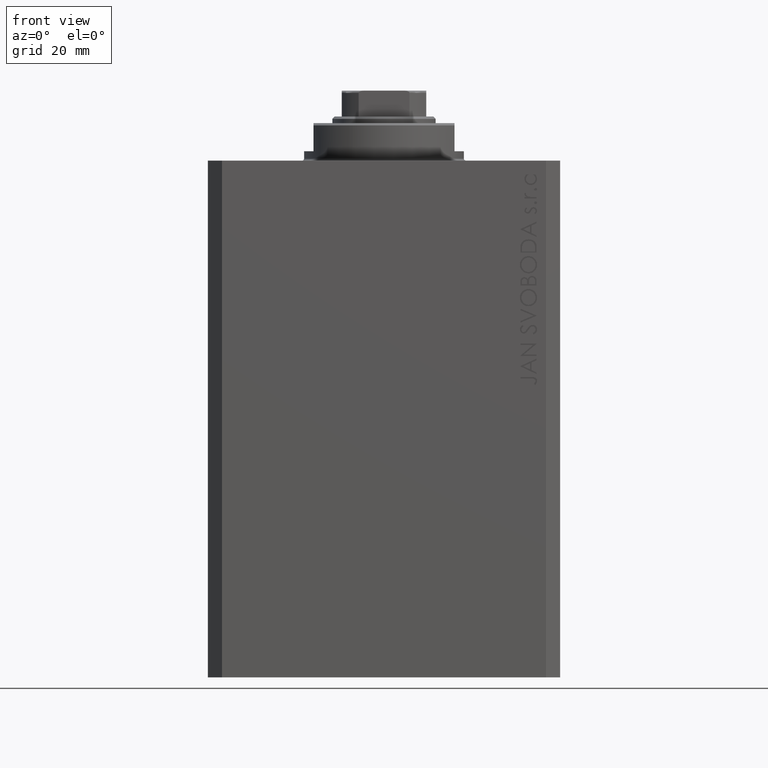
[diagram: clean part render]
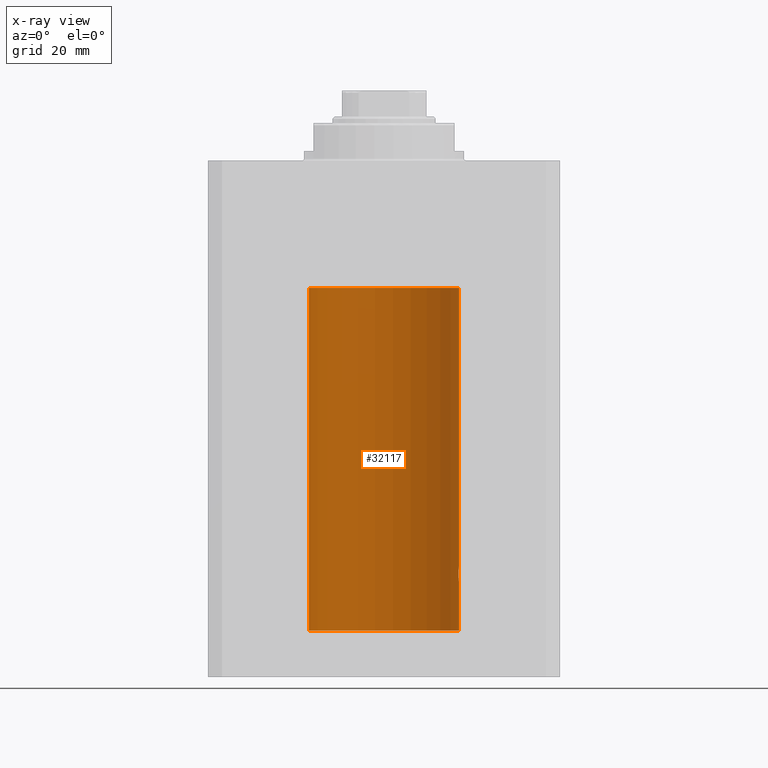
[diagram: x-ray — body ghosted, one internal face saturated and labeled with its STEP entity id]
A machine part, front view, then the same camera in x-ray: the body is ghosted and one INTERNAL B-rep face — a face not visible from any outside direction — is saturated and labeled: STEP entity #32117.
In plain terms, the highlighted cylindrical surface (partial cylindrical patch) has radius 16 mm, axis along (0, 0, 1).
Its self-contained STEP definition (entity closure, byte-faithful):
#279 = CARTESIAN_POINT ( 'NONE',  ( 16.00000000000000000, 0.1305637488590863926, -85.99999999999998579 ) ) ;
#891 = VECTOR ( 'NONE', #11910, 1000.000000000000000 ) ;
#2408 = CARTESIAN_POINT ( 'NONE',  ( 15.87450786638750699, 2.000000000000297096, -88.00000000000000000 ) ) ;
#2840 = CARTESIAN_POINT ( 'NONE',  ( 15.88135773388169092, 1.947448446433282854, -88.52472455433247944 ) ) ;
#3575 = CIRCLE ( 'NONE', #4308, 16.00000000000000000 ) ;
#3641 = EDGE_CURVE ( 'NONE', #29181, #42458, #37795, .T. ) ;
#3649 = CARTESIAN_POINT ( 'NONE',  ( 15.98747899434752817, 0.6443623600228916004, -86.10211550510818768 ) ) ;
#4262 = EDGE_CURVE ( 'NONE', #19535, #29181, #5897, .T. ) ;
#4308 = AXIS2_PLACEMENT_3D ( 'NONE', #12971, #44508, #6416 ) ;
#5219 = ORIENTED_EDGE ( 'NONE', *, *, #9535, .F. ) ;
#5897 = LINE ( 'NONE', #30031, #27305 ) ;
#6416 = DIRECTION ( 'NONE',  ( 1.000000000000000000, 0.000000000000000000, 0.000000000000000000 ) ) ;
#6443 = CARTESIAN_POINT ( 'NONE',  ( 15.96893716441426214, 1.002454028984434808, -89.73556042441214231 ) ) ;
#6890 = CARTESIAN_POINT ( 'NONE',  ( 16.00000000000000000, -2.738688404655786685E-23, -86.00000000000000000 ) ) ;
#6924 = CARTESIAN_POINT ( 'NONE',  ( 16.00000000000000000, 0.000000000000000000, -100.0999999999999943 ) ) ;
#7489 = CARTESIAN_POINT ( 'NONE',  ( 15.90582997788426312, 1.734897462761020082, -86.99646332855050446 ) ) ;
#7711 = CARTESIAN_POINT ( 'NONE',  ( 15.99207203775707065, 0.5197027266689088210, -86.06427960618061945 ) ) ;
#9153 = CYLINDRICAL_SURFACE ( 'NONE', #18301, 16.00000000000000000 ) ;
#9384 = CARTESIAN_POINT ( 'NONE',  ( 15.87450786638751410, 2.000000000000297096, -88.26124530359815878 ) ) ;
#9535 = EDGE_CURVE ( 'NONE', #19535, #30799, #3575, .T. ) ;
#11395 = DIRECTION ( 'NONE',  ( 0.000000000000000000, 0.000000000000000000, 1.000000000000000000 ) ) ;
#11910 = DIRECTION ( 'NONE',  ( -0.000000000000000000, -0.000000000000000000, 1.000000000000000000 ) ) ;
#12971 = CARTESIAN_POINT ( 'NONE',  ( 0.000000000000000000, 0.000000000000000000, -100.0999999999999943 ) ) ;
#15174 = ORIENTED_EDGE ( 'NONE', *, *, #4262, .T. ) ;
#16221 = CIRCLE ( 'NONE', #37794, 16.00000000000000000 ) ;
#17030 = ORIENTED_EDGE ( 'NONE', *, *, #20811, .T. ) ;
#17416 = CARTESIAN_POINT ( 'NONE',  ( 15.89878974374255449, 1.797508500259969777, -87.11334888788564967 ) ) ;
#18301 = AXIS2_PLACEMENT_3D ( 'NONE', #26514, #39823, #40268 ) ;
#19535 = VERTEX_POINT ( 'NONE', #32278 ) ;
#20217 = CARTESIAN_POINT ( 'NONE',  ( 15.95380611548778660, 1.219810915946573759, -89.59032870701324214 ) ) ;
#20328 = DIRECTION ( 'NONE',  ( -0.000000000000000000, -0.000000000000000000, 1.000000000000000000 ) ) ;
#20441 = CARTESIAN_POINT ( 'NONE',  ( 16.00000000000000000, 3.524002214059393877E-15, -90.00000000000000000 ) ) ;
#20811 = EDGE_CURVE ( 'NONE', #27737, #35232, #16221, .T. ) ;
#21265 = CARTESIAN_POINT ( 'NONE',  ( 16.00000000000000000, -2.738688404655786685E-23, -86.00000000000000000 ) ) ;
#22919 = FACE_OUTER_BOUND ( 'NONE', #28956, .T. ) ;
#23383 = CARTESIAN_POINT ( 'NONE',  ( 15.90454527605181667, 1.748004143318092174, -89.00616739381551668 ) ) ;
#23818 = CARTESIAN_POINT ( 'NONE',  ( 15.99211620657850474, 0.5182628822511399225, -89.93608344894170159 ) ) ;
#24866 = CARTESIAN_POINT ( 'NONE',  ( 15.92095407913750726, 1.590131347295332009, -86.77998469042918828 ) ) ;
#25080 = CARTESIAN_POINT ( 'NONE',  ( 15.88712192135845491, 1.897869642555071179, -87.35557946728211220 ) ) ;
#26514 = CARTESIAN_POINT ( 'NONE',  ( 0.000000000000000000, 0.000000000000000000, -100.0999999999999943 ) ) ;
#26528 = CARTESIAN_POINT ( 'NONE',  ( 15.99836014839681830, 0.2623923436743452187, -89.98699919334814012 ) ) ;
#27305 = VECTOR ( 'NONE', #20328, 1000.000000000000000 ) ;
#27436 = LINE ( 'NONE', #6924, #40562 ) ;
#27550 = CARTESIAN_POINT ( 'NONE',  ( 15.94566414814287469, 1.320819617421907788, -86.49240758272487994 ) ) ;
#27664 = CARTESIAN_POINT ( 'NONE',  ( 16.00000000000000000, 3.524002214059393877E-15, -90.00000000000000000 ) ) ;
#27737 = VERTEX_POINT ( 'NONE', #34978 ) ;
#27779 = CARTESIAN_POINT ( 'NONE',  ( 15.87617168140110380, 1.986916736633999037, -87.73680934434936773 ) ) ;
#28067 = CARTESIAN_POINT ( 'NONE',  ( 0.000000000000000000, 0.000000000000000000, -27.10000000000000142 ) ) ;
#28231 = CARTESIAN_POINT ( 'NONE',  ( -16.00000000000000000, 1.959434878635765131E-15, -100.0999999999999943 ) ) ;
#28956 = EDGE_LOOP ( 'NONE', ( #29796, #5219, #15174, #44457, #34081, #34982, #17030 ) ) ;
#29181 = VERTEX_POINT ( 'NONE', #27664 ) ;
#29253 = EDGE_CURVE ( 'NONE', #40084, #27737, #27436, .T. ) ;
#29796 = ORIENTED_EDGE ( 'NONE', *, *, #37939, .F. ) ;
#30029 = EDGE_CURVE ( 'NONE', #42458, #40084, #43832, .T. ) ;
#30031 = CARTESIAN_POINT ( 'NONE',  ( 16.00000000000000000, 0.000000000000000000, -100.0999999999999943 ) ) ;
#30799 = VERTEX_POINT ( 'NONE', #28231 ) ;
#31168 = CARTESIAN_POINT ( 'NONE',  ( 15.95379436193629985, 1.219925354616377966, -86.40980009844315646 ) ) ;
#32117 = ADVANCED_FACE ( 'NONE', ( #22919 ), #9153, .F. ) ;
#32139 = DIRECTION ( 'NONE',  ( 1.000000000000000000, 0.000000000000000000, 0.000000000000000000 ) ) ;
#32278 = CARTESIAN_POINT ( 'NONE',  ( 16.00000000000000000, 0.000000000000000000, -100.0999999999999943 ) ) ;
#33281 = CARTESIAN_POINT ( 'NONE',  ( 15.99999999999999645, 0.1323149458028788361, -90.00000000000002842 ) ) ;
#33728 = CARTESIAN_POINT ( 'NONE',  ( 15.97582125337101999, 0.8876008124445644576, -89.79704090617748591 ) ) ;
#33800 = CARTESIAN_POINT ( 'NONE',  ( -16.00000000000000000, 1.959434878635765131E-15, -27.10000000000000142 ) ) ;
#34081 = ORIENTED_EDGE ( 'NONE', *, *, #30029, .T. ) ;
#34423 = DIRECTION ( 'NONE',  ( -0.000000000000000000, -0.000000000000000000, 1.000000000000000000 ) ) ;
#34772 = CARTESIAN_POINT ( 'NONE',  ( 15.87450786638751055, 2.000000000000297984, -87.86943869497294202 ) ) ;
#34978 = CARTESIAN_POINT ( 'NONE',  ( 16.00000000000000000, 0.000000000000000000, -27.10000000000000142 ) ) ;
#34982 = ORIENTED_EDGE ( 'NONE', *, *, #29253, .T. ) ;
#34999 = CARTESIAN_POINT ( 'NONE',  ( 15.96887171920781689, 1.003448269354837441, -86.26505182542071282 ) ) ;
#35232 = VERTEX_POINT ( 'NONE', #33800 ) ;
#35435 = CARTESIAN_POINT ( 'NONE',  ( 15.88249567060696243, 1.935716055827872539, -87.48027816021618719 ) ) ;
#36896 = CARTESIAN_POINT ( 'NONE',  ( 15.94550883254178331, 1.322613426523511881, -89.50588495029012392 ) ) ;
#37794 = AXIS2_PLACEMENT_3D ( 'NONE', #28067, #11395, #32139 ) ;
#37795 = B_SPLINE_CURVE_WITH_KNOTS ( 'NONE', 3,
 ( #20441, #33281, #26528, #23818, #40281, #33728, #6443, #20217, #36896, #43880, #23383, #2840, #9384, #2408 ),
 .UNSPECIFIED., .F., .F.,
 ( 4, 2, 2, 2, 2, 2, 4 ),
 ( 3.424160547694500162E-18, 0.0003912813346923356916, 0.0007825626693846680221, 0.001173844004077000082, 0.001565125338769331924, 0.002347688008154024883, 0.003130250677538718058 ),
 .UNSPECIFIED. ) ;
#37939 = EDGE_CURVE ( 'NONE', #30799, #35232, #40076, .T. ) ;
#38381 = CARTESIAN_POINT ( 'NONE',  ( 15.87450786638750699, 2.000000000000297096, -88.00000000000000000 ) ) ;
#38825 = CARTESIAN_POINT ( 'NONE',  ( 15.97588373855009536, 0.8864683965309503311, -86.20240655627672766 ) ) ;
#39305 = CARTESIAN_POINT ( 'NONE',  ( 15.87450786638750699, 2.000000000000297096, -88.00000000000000000 ) ) ;
#39823 = DIRECTION ( 'NONE',  ( -0.000000000000000000, -0.000000000000000000, 1.000000000000000000 ) ) ;
#40076 = LINE ( 'NONE', #42781, #891 ) ;
#40084 = VERTEX_POINT ( 'NONE', #6890 ) ;
#40268 = DIRECTION ( 'NONE',  ( 1.000000000000000000, 0.000000000000000000, 0.000000000000000000 ) ) ;
#40281 = CARTESIAN_POINT ( 'NONE',  ( 15.98743782203464825, 0.6453927552190293904, -89.89754035852679692 ) ) ;
#40562 = VECTOR ( 'NONE', #34423, 1000.000000000000000 ) ;
#41535 = CARTESIAN_POINT ( 'NONE',  ( 15.92911104305801828, 1.507378839264603476, -86.67893664295412748 ) ) ;
#42208 = CARTESIAN_POINT ( 'NONE',  ( 15.99834953062734222, 0.2631943783489354982, -86.01308452963878892 ) ) ;
#42458 = VERTEX_POINT ( 'NONE', #39305 ) ;
#42781 = CARTESIAN_POINT ( 'NONE',  ( -16.00000000000000000, 1.959434878635765131E-15, -100.0999999999999943 ) ) ;
#43832 = B_SPLINE_CURVE_WITH_KNOTS ( 'NONE', 3,
 ( #38381, #34772, #27779, #35435, #25080, #17416, #7489, #24866, #41535, #27550, #31168, #34999, #38825, #3649, #7711, #42208, #279, #21265 ),
 .UNSPECIFIED., .F., .F.,
 ( 4, 2, 2, 2, 2, 2, 2, 2, 4 ),
 ( 0.003130250677538718058, 0.003521348247420690372, 0.003912445817302662686, 0.004303543387184635000, 0.004694640957066607313, 0.005085738526948579627, 0.005476836096830552808, 0.005867933666712525122, 0.006259031236594497435 ),
 .UNSPECIFIED. ) ;
#43880 = CARTESIAN_POINT ( 'NONE',  ( 15.92096875784782739, 1.599058044721133331, -89.22922593843965444 ) ) ;
#44457 = ORIENTED_EDGE ( 'NONE', *, *, #3641, .T. ) ;
#44508 = DIRECTION ( 'NONE',  ( 0.000000000000000000, 0.000000000000000000, 1.000000000000000000 ) ) ;